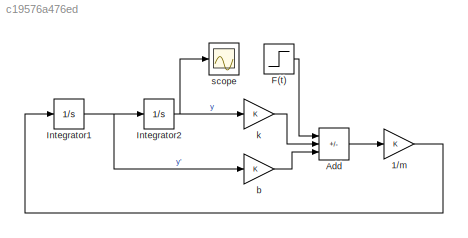
MODEL slx_c19576a476ed
KIND model
CONFIG AbsTol = auto
CONFIG EnableMultiTasking = off
CONFIG FixedStep = auto
CONFIG MaxStep = auto
CONFIG MinStep = auto
CONFIG RelTol = 1e-3
CONFIG SampleTimeConstraint = Unconstrained
CONFIG SolverName = VariableStepAuto
CONFIG StartTime = 0.0
CONFIG StopTime = 10.0
WORKSPACE source: mxarray member
WORKSPACE m = 0
BLOCK [Gain] 1//m
BLOCK [Sum] Add
  IconShape = rectangular
  Inputs = +--
BLOCK [Step] F(t)
  SampleTime = 0
BLOCK [Integrator] Integrator1
BLOCK [Integrator] Integrator2
BLOCK [Gain] b
BLOCK [Gain] k
BLOCK [Scope] scope
  ActiveDisplayYMaximum = 1.30834228747387
  ActiveDisplayYMinimum = -0.1453713652748744
  Floating = off
  GraphicalSettings = {"Style":{"BackgroundColor":[0.12941176470588237,0.12941176470588237,0.12941176470588237],"AxesColor":[0.07058823529411765,0.07058823529411765,0.07058823529411765],"LabelsColor":[0.8509803921568627,0.8509803921568627,0.8509803921568627],"PreserveColors":false,"Visible":[true],"LineStyle":["-"],"LineWidth":[1.5],"BarWidth":[0.9],"LineColor":["auto"],"LineFaceAlpha":[1],"LineEdgeAlpha":[1],"Marker":...<+1884ch>
  MultipleDisplayCache = [{"MaxYLimMag":1.30834228747387,"MaxYLimReal":1.30834228747387,"MinYLimMag":0,"MinYLimReal":-0.1453713652748744,"PlotAsMagnitudePhase":false,"ShowGrid":true,"ShowLegend":false,"Title":"%<SignalLabel>","YLabel":""}]
  NumInputPorts = 1
  ScopeFrameLocation = window
  WasSavedAsWebScope = on
  WindowPosition = [-759.000000,322.000000,560.000000,420.000000,]
LINE 1//m:1 -> Integrator1:1
LINE Add:1 -> 1//m:1
LINE F(t):1 -> Add:1
NET Integrator1:1 -> Integrator2:1, b:1
NET Integrator2:1 -> k:1, scope:1
LINE b:1 -> Add:3
LINE k:1 -> Add:2
note: NET lines group one-source signal fan-out (src -> all destinations, sorted); 1:1 wires keep LINE
